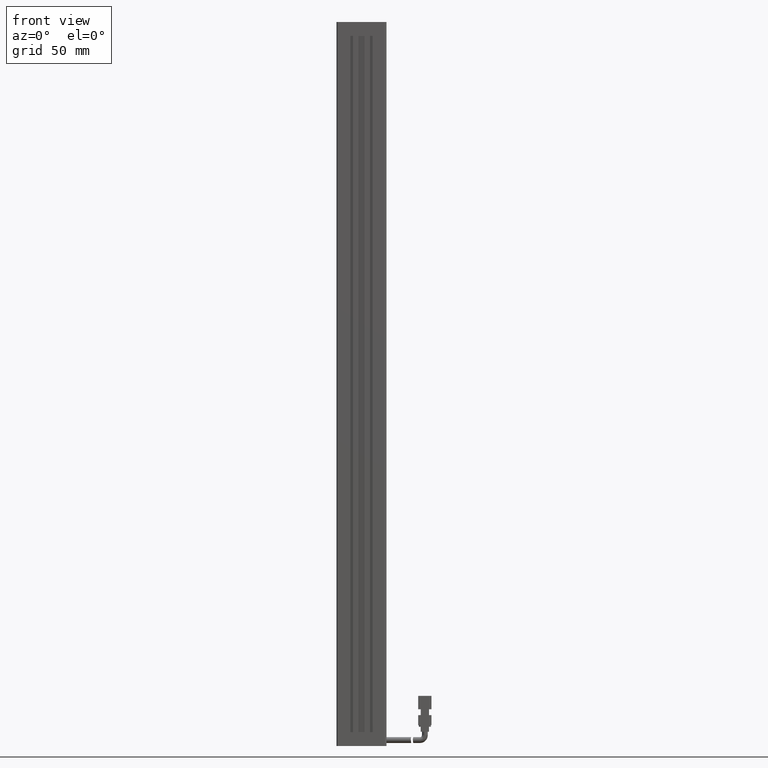
[diagram: clean part render]
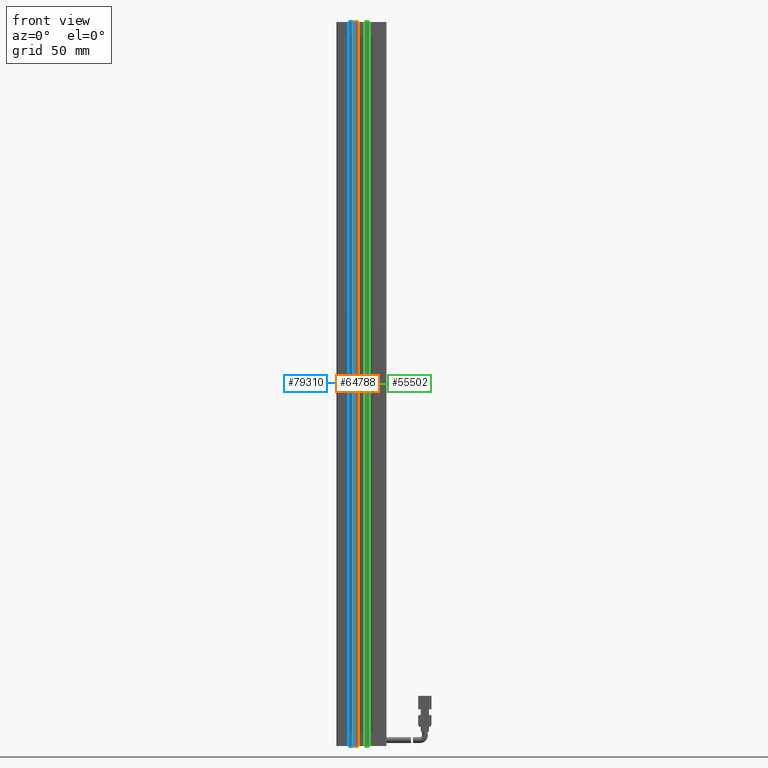
[diagram: same view with three faces highlighted in distinct colors, each labeled with its STEP entity id]
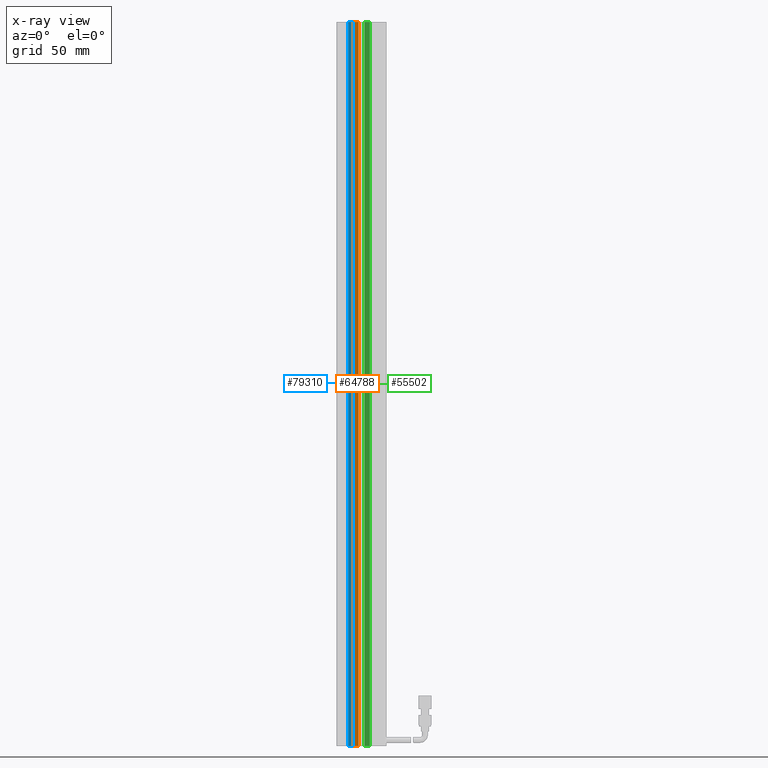
[diagram: x-ray of the same camera — body ghosted, the three highlighted faces saturated]
A machine part, front view with three faces highlighted in distinct colors.
The next image is the same camera in x-ray (body ghosted, the three faces saturated) — at least one of them is partly hidden behind the body in this view.
Their STEP definitions:

[orange] entity #64788 — the highlighted planar face has unit normal (0, -1, 0).
#657 = CARTESIAN_POINT ( 'NONE',  ( 40.92537974683542500, 10.69594479660386800, 102.0000000000000000 ) ) ;
#1159 = DIRECTION ( 'NONE',  ( -0.0000000000000000000, 0.0000000000000000000, 1.000000000000000000 ) ) ;
#2515 = LINE ( 'NONE', #68471, #35412 ) ;
#4298 = CARTESIAN_POINT ( 'NONE',  ( 39.17537974683542500, 10.69594479660386800, -332.0000000000000000 ) ) ;
#5569 = CARTESIAN_POINT ( 'NONE',  ( 39.17537974683542500, 10.69594479660386800, 102.0000000000000000 ) ) ;
#5602 = LINE ( 'NONE', #657, #38445 ) ;
#5857 = VERTEX_POINT ( 'NONE', #4298 ) ;
#9807 = VECTOR ( 'NONE', #60635, 1000.000000000000000 ) ;
#15310 = ORIENTED_EDGE ( 'NONE', *, *, #20293, .T. ) ;
#16425 = VERTEX_POINT ( 'NONE', #39589 ) ;
#19222 = VERTEX_POINT ( 'NONE', #63282 ) ;
#20293 = EDGE_CURVE ( 'NONE', #16425, #5857, #58767, .T. ) ;
#26774 = CARTESIAN_POINT ( 'NONE',  ( 40.92537974683542500, 10.69594479660386800, 102.0000000000000000 ) ) ;
#28741 = VERTEX_POINT ( 'NONE', #5569 ) ;
#29459 = EDGE_LOOP ( 'NONE', ( #61760, #42112, #15310, #53839 ) ) ;
#31843 = DIRECTION ( 'NONE',  ( 0.0000000000000000000, -0.0000000000000000000, -1.000000000000000000 ) ) ;
#32671 = PLANE ( 'NONE',  #46714 ) ;
#32931 = DIRECTION ( 'NONE',  ( 0.0000000000000000000, -0.0000000000000000000, -1.000000000000000000 ) ) ;
#35412 = VECTOR ( 'NONE', #31843, 1000.000000000000000 ) ;
#38445 = VECTOR ( 'NONE', #43797, 1000.000000000000000 ) ;
#39589 = CARTESIAN_POINT ( 'NONE',  ( 35.92537974683543200, 10.69594479660386800, -332.0000000000000000 ) ) ;
#42112 = ORIENTED_EDGE ( 'NONE', *, *, #43124, .T. ) ;
#43124 = EDGE_CURVE ( 'NONE', #19222, #16425, #2515, .T. ) ;
#43797 = DIRECTION ( 'NONE',  ( 1.000000000000000000, 0.0000000000000000000, 0.0000000000000000000 ) ) ;
#44301 = CARTESIAN_POINT ( 'NONE',  ( 39.17537974683542500, 10.69594479660386800, 102.0000000000000000 ) ) ;
#46714 = AXIS2_PLACEMENT_3D ( 'NONE', #26774, #69577, #32931 ) ;
#53839 = ORIENTED_EDGE ( 'NONE', *, *, #68209, .T. ) ;
#58767 = LINE ( 'NONE', #78789, #9807 ) ;
#60635 = DIRECTION ( 'NONE',  ( 1.000000000000000000, 0.0000000000000000000, 0.0000000000000000000 ) ) ;
#61760 = ORIENTED_EDGE ( 'NONE', *, *, #71488, .F. ) ;
#63282 = CARTESIAN_POINT ( 'NONE',  ( 35.92537974683543200, 10.69594479660386800, 102.0000000000000000 ) ) ;
#64788 = ADVANCED_FACE ( 'NONE', ( #78531 ), #32671, .T. ) ;
#67883 = VECTOR ( 'NONE', #1159, 1000.000000000000000 ) ;
#68209 = EDGE_CURVE ( 'NONE', #5857, #28741, #69812, .T. ) ;
#68471 = CARTESIAN_POINT ( 'NONE',  ( 35.92537974683543200, 10.69594479660386800, 102.0000000000000000 ) ) ;
#69577 = DIRECTION ( 'NONE',  ( 0.0000000000000000000, -1.000000000000000000, 0.0000000000000000000 ) ) ;
#69812 = LINE ( 'NONE', #44301, #67883 ) ;
#71488 = EDGE_CURVE ( 'NONE', #19222, #28741, #5602, .T. ) ;
#78531 = FACE_OUTER_BOUND ( 'NONE', #29459, .T. ) ;
#78789 = CARTESIAN_POINT ( 'NONE',  ( 40.92537974683542500, 10.69594479660386800, -332.0000000000000000 ) ) ;

[blue] entity #79310 — the highlighted planar face has unit normal (0, 1, 0).
#2470 = PLANE ( 'NONE',  #3264 ) ;
#3264 = AXIS2_PLACEMENT_3D ( 'NONE', #33580, #76318, #39739 ) ;
#3821 = LINE ( 'NONE', #35789, #67267 ) ;
#4452 = ORIENTED_EDGE ( 'NONE', *, *, #69714, .F. ) ;
#4462 = DIRECTION ( 'NONE',  ( 0.0000000000000000000, -0.0000000000000000000, 1.000000000000000000 ) ) ;
#4987 = CARTESIAN_POINT ( 'NONE',  ( 32.92537974683543200, 16.19594479660386500, 102.0000000000000000 ) ) ;
#5941 = LINE ( 'NONE', #77991, #53068 ) ;
#6162 = CARTESIAN_POINT ( 'NONE',  ( 35.92537974683543200, 16.19594479660386500, 102.0000000000000000 ) ) ;
#6308 = CARTESIAN_POINT ( 'NONE',  ( 35.92537974683543200, 16.19594479660386500, 102.0000000000000000 ) ) ;
#7213 = EDGE_LOOP ( 'NONE', ( #60376, #4452, #23981, #17362 ) ) ;
#11237 = DIRECTION ( 'NONE',  ( 1.000000000000000000, 0.0000000000000000000, 0.0000000000000000000 ) ) ;
#17362 = ORIENTED_EDGE ( 'NONE', *, *, #75854, .T. ) ;
#23981 = ORIENTED_EDGE ( 'NONE', *, *, #35768, .F. ) ;
#24179 = VERTEX_POINT ( 'NONE', #50531 ) ;
#25538 = VECTOR ( 'NONE', #47953, 1000.000000000000000 ) ;
#33580 = CARTESIAN_POINT ( 'NONE',  ( 40.92537974683542500, 16.19594479660386500, 102.0000000000000000 ) ) ;
#35768 = EDGE_CURVE ( 'NONE', #40821, #35837, #5941, .T. ) ;
#35789 = CARTESIAN_POINT ( 'NONE',  ( 40.92537974683542500, 16.19594479660386500, 102.0000000000000000 ) ) ;
#35837 = VERTEX_POINT ( 'NONE', #4987 ) ;
#39739 = DIRECTION ( 'NONE',  ( 0.0000000000000000000, -0.0000000000000000000, 1.000000000000000000 ) ) ;
#40821 = VERTEX_POINT ( 'NONE', #60822 ) ;
#45190 = VERTEX_POINT ( 'NONE', #6308 ) ;
#47953 = DIRECTION ( 'NONE',  ( 1.000000000000000000, 0.0000000000000000000, 0.0000000000000000000 ) ) ;
#49524 = EDGE_CURVE ( 'NONE', #45190, #24179, #61815, .T. ) ;
#50531 = CARTESIAN_POINT ( 'NONE',  ( 35.92537974683543200, 16.19594479660386500, -332.0000000000000000 ) ) ;
#53068 = VECTOR ( 'NONE', #4462, 1000.000000000000000 ) ;
#55333 = DIRECTION ( 'NONE',  ( -0.0000000000000000000, -0.0000000000000000000, -1.000000000000000000 ) ) ;
#58080 = LINE ( 'NONE', #59977, #25538 ) ;
#59977 = CARTESIAN_POINT ( 'NONE',  ( 40.92537974683542500, 16.19594479660386500, -332.0000000000000000 ) ) ;
#60376 = ORIENTED_EDGE ( 'NONE', *, *, #49524, .F. ) ;
#60822 = CARTESIAN_POINT ( 'NONE',  ( 32.92537974683543200, 16.19594479660386500, -332.0000000000000000 ) ) ;
#61815 = LINE ( 'NONE', #6162, #76174 ) ;
#67267 = VECTOR ( 'NONE', #11237, 1000.000000000000000 ) ;
#68504 = FACE_OUTER_BOUND ( 'NONE', #7213, .T. ) ;
#69714 = EDGE_CURVE ( 'NONE', #35837, #45190, #3821, .T. ) ;
#75854 = EDGE_CURVE ( 'NONE', #40821, #24179, #58080, .T. ) ;
#76174 = VECTOR ( 'NONE', #55333, 1000.000000000000000 ) ;
#76318 = DIRECTION ( 'NONE',  ( 0.0000000000000000000, 1.000000000000000000, 0.0000000000000000000 ) ) ;
#77991 = CARTESIAN_POINT ( 'NONE',  ( 32.92537974683543200, 16.19594479660386500, 102.0000000000000000 ) ) ;
#79310 = ADVANCED_FACE ( 'NONE', ( #68504 ), #2470, .F. ) ;

[green] entity #55502 — the highlighted planar face has unit normal (0, 1, 0).
#2339 = VECTOR ( 'NONE', #44096, 1000.000000000000000 ) ;
#7346 = EDGE_CURVE ( 'NONE', #8609, #74160, #70196, .T. ) ;
#7618 = EDGE_CURVE ( 'NONE', #79358, #8609, #66281, .T. ) ;
#8348 = FACE_OUTER_BOUND ( 'NONE', #15001, .T. ) ;
#8609 = VERTEX_POINT ( 'NONE', #57653 ) ;
#12060 = ORIENTED_EDGE ( 'NONE', *, *, #7618, .T. ) ;
#15001 = EDGE_LOOP ( 'NONE', ( #41420, #79061, #24827, #12060 ) ) ;
#15429 = VECTOR ( 'NONE', #45337, 1000.000000000000000 ) ;
#21301 = VECTOR ( 'NONE', #59780, 1000.000000000000000 ) ;
#23430 = CARTESIAN_POINT ( 'NONE',  ( 40.92537974683542500, 10.69594479660386800, 102.0000000000000000 ) ) ;
#24827 = ORIENTED_EDGE ( 'NONE', *, *, #52399, .F. ) ;
#27993 = CARTESIAN_POINT ( 'NONE',  ( 42.67537974683542500, 10.69594479660386800, 102.0000000000000000 ) ) ;
#29655 = DIRECTION ( 'NONE',  ( 0.0000000000000000000, -0.0000000000000000000, 1.000000000000000000 ) ) ;
#41420 = ORIENTED_EDGE ( 'NONE', *, *, #7346, .T. ) ;
#42607 = EDGE_CURVE ( 'NONE', #47726, #74160, #51841, .T. ) ;
#44096 = DIRECTION ( 'NONE',  ( 0.0000000000000000000, -0.0000000000000000000, 1.000000000000000000 ) ) ;
#45337 = DIRECTION ( 'NONE',  ( 1.000000000000000000, 0.0000000000000000000, 0.0000000000000000000 ) ) ;
#45889 = CARTESIAN_POINT ( 'NONE',  ( 45.92537974683541800, 10.69594479660386800, 102.0000000000000000 ) ) ;
#46122 = CARTESIAN_POINT ( 'NONE',  ( 42.67537974683542500, 10.69594479660386800, -332.0000000000000000 ) ) ;
#47726 = VERTEX_POINT ( 'NONE', #27993 ) ;
#51439 = LINE ( 'NONE', #68417, #2339 ) ;
#51841 = LINE ( 'NONE', #56509, #68146 ) ;
#52399 = EDGE_CURVE ( 'NONE', #79358, #47726, #51439, .T. ) ;
#52885 = AXIS2_PLACEMENT_3D ( 'NONE', #23430, #66288, #29655 ) ;
#55502 = ADVANCED_FACE ( 'NONE', ( #8348 ), #72202, .F. ) ;
#56509 = CARTESIAN_POINT ( 'NONE',  ( 40.92537974683542500, 10.69594479660386800, 102.0000000000000000 ) ) ;
#57653 = CARTESIAN_POINT ( 'NONE',  ( 45.92537974683541800, 10.69594479660386800, -332.0000000000000000 ) ) ;
#59780 = DIRECTION ( 'NONE',  ( 0.0000000000000000000, 0.0000000000000000000, 1.000000000000000000 ) ) ;
#62662 = DIRECTION ( 'NONE',  ( 1.000000000000000000, 0.0000000000000000000, 0.0000000000000000000 ) ) ;
#65950 = CARTESIAN_POINT ( 'NONE',  ( 45.92537974683541800, 10.69594479660386800, 102.0000000000000000 ) ) ;
#66281 = LINE ( 'NONE', #75803, #15429 ) ;
#66288 = DIRECTION ( 'NONE',  ( 0.0000000000000000000, 1.000000000000000000, 0.0000000000000000000 ) ) ;
#68146 = VECTOR ( 'NONE', #62662, 1000.000000000000000 ) ;
#68417 = CARTESIAN_POINT ( 'NONE',  ( 42.67537974683542500, 10.69594479660386800, 102.0000000000000000 ) ) ;
#70196 = LINE ( 'NONE', #65950, #21301 ) ;
#72202 = PLANE ( 'NONE',  #52885 ) ;
#74160 = VERTEX_POINT ( 'NONE', #45889 ) ;
#75803 = CARTESIAN_POINT ( 'NONE',  ( 40.92537974683542500, 10.69594479660386800, -332.0000000000000000 ) ) ;
#79061 = ORIENTED_EDGE ( 'NONE', *, *, #42607, .F. ) ;
#79358 = VERTEX_POINT ( 'NONE', #46122 ) ;